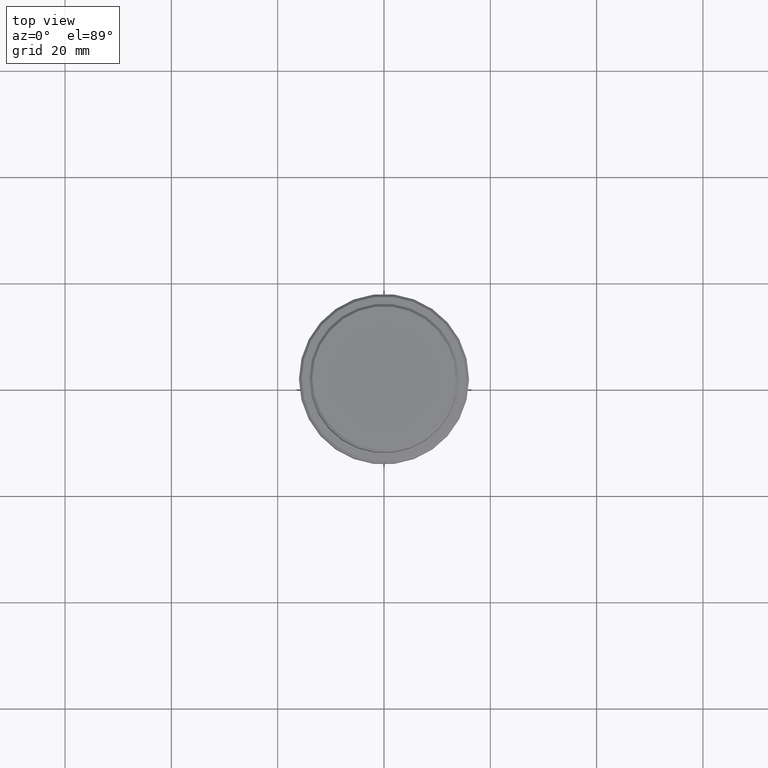
[diagram: clean part render]
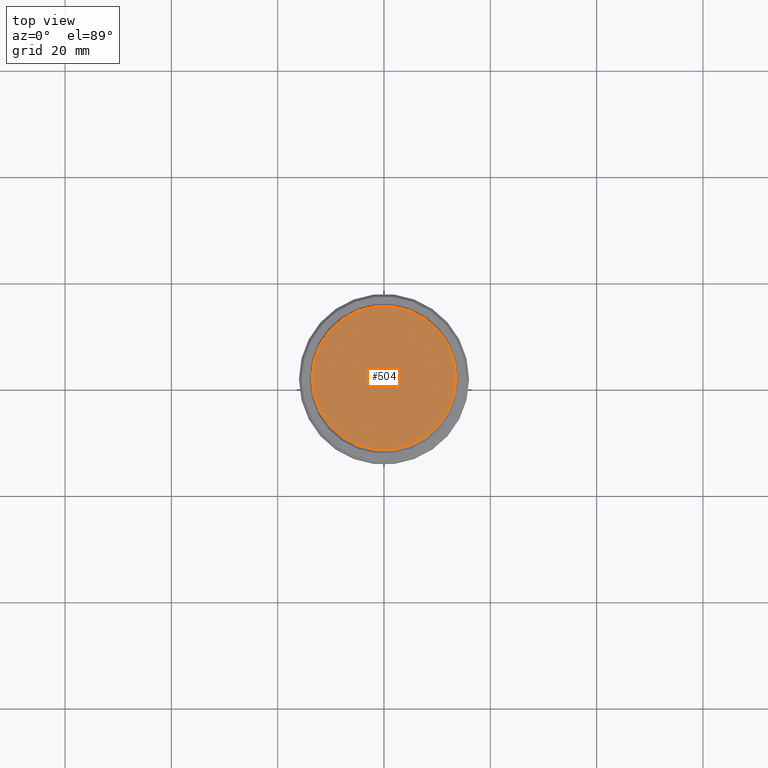
[diagram: same view with one face highlighted and labeled with its STEP entity id]
A machine part, top view. The second image highlights one B-rep face of the part: STEP entity #504.
In plain terms, the highlighted planar face has unit normal (0, -0, 1).
Its self-contained STEP definition (entity closure, byte-faithful):
#26 = DIRECTION ( 'NONE',  ( -0.000000000000000000, -0.000000000000000000, 1.000000000000000000 ) ) ;
#146 = AXIS2_PLACEMENT_3D ( 'NONE', #1003, #26, #1097 ) ;
#151 = ORIENTED_EDGE ( 'NONE', *, *, #829, .T. ) ;
#153 = EDGE_LOOP ( 'NONE', ( #371, #151 ) ) ;
#264 = CARTESIAN_POINT ( 'NONE',  ( -13.49999999999999822, 0.000000000000000000, 0.000000000000000000 ) ) ;
#312 = AXIS2_PLACEMENT_3D ( 'NONE', #440, #1175, #1078 ) ;
#371 = ORIENTED_EDGE ( 'NONE', *, *, #1361, .T. ) ;
#384 = DIRECTION ( 'NONE',  ( 1.000000000000000000, 0.000000000000000000, 0.000000000000000000 ) ) ;
#440 = CARTESIAN_POINT ( 'NONE',  ( 0.000000000000000000, 0.000000000000000000, 0.000000000000000000 ) ) ;
#441 = VERTEX_POINT ( 'NONE', #475 ) ;
#475 = CARTESIAN_POINT ( 'NONE',  ( 13.49999999999999822, 1.683889348827610456E-15, 0.000000000000000000 ) ) ;
#504 = ADVANCED_FACE ( 'NONE', ( #1157 ), #607, .T. ) ;
#508 = VERTEX_POINT ( 'NONE', #264 ) ;
#607 = PLANE ( 'NONE',  #854 ) ;
#829 = EDGE_CURVE ( 'NONE', #441, #508, #1324, .T. ) ;
#854 = AXIS2_PLACEMENT_3D ( 'NONE', #943, #1167, #384 ) ;
#943 = CARTESIAN_POINT ( 'NONE',  ( 0.000000000000000000, 0.000000000000000000, 0.000000000000000000 ) ) ;
#1003 = CARTESIAN_POINT ( 'NONE',  ( 0.000000000000000000, 0.000000000000000000, 0.000000000000000000 ) ) ;
#1078 = DIRECTION ( 'NONE',  ( 1.000000000000000000, 0.000000000000000000, 0.000000000000000000 ) ) ;
#1097 = DIRECTION ( 'NONE',  ( 1.000000000000000000, 0.000000000000000000, 0.000000000000000000 ) ) ;
#1157 = FACE_OUTER_BOUND ( 'NONE', #153, .T. ) ;
#1167 = DIRECTION ( 'NONE',  ( 0.000000000000000000, -0.000000000000000000, 1.000000000000000000 ) ) ;
#1175 = DIRECTION ( 'NONE',  ( -0.000000000000000000, -0.000000000000000000, 1.000000000000000000 ) ) ;
#1285 = CIRCLE ( 'NONE', #146, 13.49999999999999822 ) ;
#1324 = CIRCLE ( 'NONE', #312, 13.49999999999999822 ) ;
#1361 = EDGE_CURVE ( 'NONE', #508, #441, #1285, .T. ) ;